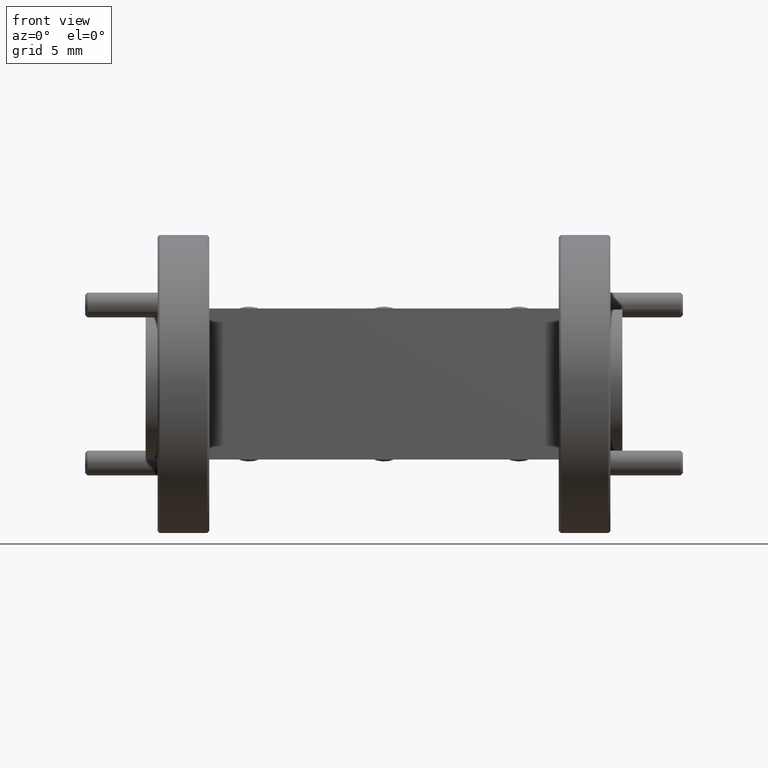
[diagram: clean part render]
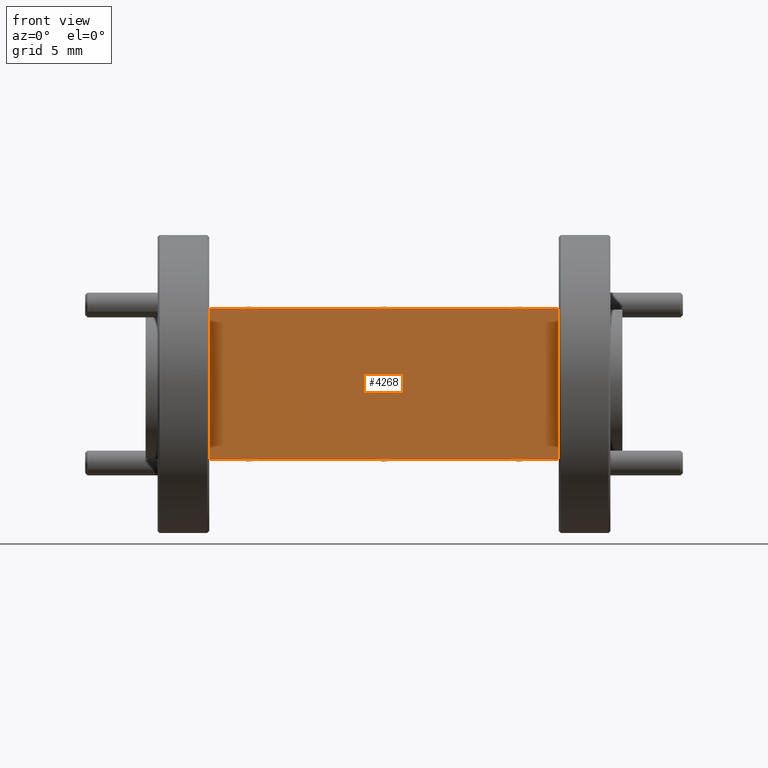
[diagram: same view with one face highlighted and labeled with its STEP entity id]
A machine part, front view. The second image highlights one B-rep face of the part: STEP entity #4268.
In plain terms, the highlighted planar face has unit normal (0, 1, 0).
Its self-contained STEP definition (entity closure, byte-faithful):
#162 = DIRECTION ( 'NONE',  ( -1.138269997360101000E-016, -0.0000000000000000000, 1.000000000000000000 ) ) ;
#322 = PLANE ( 'NONE',  #10404 ) ;
#1583 = VECTOR ( 'NONE', #1643, 39.37007874015748100 ) ;
#1643 = DIRECTION ( 'NONE',  ( 1.000000000000000000, 0.0000000000000000000, 0.0000000000000000000 ) ) ;
#1741 = EDGE_CURVE ( 'NONE', #10791, #9454, #10641, .T. ) ;
#1806 = LINE ( 'NONE', #5659, #2480 ) ;
#2258 = EDGE_CURVE ( 'NONE', #8614, #10791, #6744, .T. ) ;
#2388 = VECTOR ( 'NONE', #162, 39.37007874015748100 ) ;
#2432 = DIRECTION ( 'NONE',  ( -1.138269997360101000E-016, -0.0000000000000000000, 1.000000000000000000 ) ) ;
#2480 = VECTOR ( 'NONE', #8283, 39.37007874015748100 ) ;
#2624 = ORIENTED_EDGE ( 'NONE', *, *, #3609, .F. ) ;
#3042 = DIRECTION ( 'NONE',  ( 0.0000000000000000000, 0.0000000000000000000, 1.000000000000000000 ) ) ;
#3609 = EDGE_CURVE ( 'NONE', #9111, #8614, #1806, .T. ) ;
#4206 = EDGE_CURVE ( 'NONE', #9111, #9454, #6296, .T. ) ;
#4268 = ADVANCED_FACE ( 'NONE', ( #4755 ), #322, .F. ) ;
#4366 = CARTESIAN_POINT ( 'NONE',  ( 0.4400000000000001100, -0.1950000000000012300, 0.1900000000000012000 ) ) ;
#4386 = CARTESIAN_POINT ( 'NONE',  ( 0.4400000000000001100, -0.1950000000000012300, -0.1900000000000012200 ) ) ;
#4641 = VECTOR ( 'NONE', #2432, 39.37007874015748100 ) ;
#4755 = FACE_OUTER_BOUND ( 'NONE', #8994, .T. ) ;
#4938 = CARTESIAN_POINT ( 'NONE',  ( -0.4400000000000002200, -0.1950000000000012300, 0.1900000000000012200 ) ) ;
#5488 = CARTESIAN_POINT ( 'NONE',  ( 0.4400000000000001100, -0.1950000000000012300, -0.3750000000000025000 ) ) ;
#5659 = CARTESIAN_POINT ( 'NONE',  ( 0.4400000000000000000, -0.1950000000000012300, -0.1900000000000012200 ) ) ;
#6296 = LINE ( 'NONE', #5488, #2388 ) ;
#6583 = DIRECTION ( 'NONE',  ( 0.0000000000000000000, 1.000000000000000000, 0.0000000000000000000 ) ) ;
#6744 = LINE ( 'NONE', #11264, #4641 ) ;
#7282 = CARTESIAN_POINT ( 'NONE',  ( 0.4400000000000000000, -0.1950000000000012300, 0.1900000000000012200 ) ) ;
#7772 = CARTESIAN_POINT ( 'NONE',  ( -0.4400000000000001700, -0.1950000000000012300, -0.1900000000000012500 ) ) ;
#8283 = DIRECTION ( 'NONE',  ( -1.000000000000000000, 0.0000000000000000000, -3.880465900091304000E-017 ) ) ;
#8311 = CARTESIAN_POINT ( 'NONE',  ( -0.4400000000000001700, -0.1950000000000012300, -0.3750000000000026100 ) ) ;
#8614 = VERTEX_POINT ( 'NONE', #7772 ) ;
#8994 = EDGE_LOOP ( 'NONE', ( #10814, #2624, #10787, #10119 ) ) ;
#9111 = VERTEX_POINT ( 'NONE', #4386 ) ;
#9454 = VERTEX_POINT ( 'NONE', #7282 ) ;
#10119 = ORIENTED_EDGE ( 'NONE', *, *, #1741, .F. ) ;
#10404 = AXIS2_PLACEMENT_3D ( 'NONE', #8311, #6583, #3042 ) ;
#10641 = LINE ( 'NONE', #4366, #1583 ) ;
#10787 = ORIENTED_EDGE ( 'NONE', *, *, #4206, .T. ) ;
#10791 = VERTEX_POINT ( 'NONE', #4938 ) ;
#10814 = ORIENTED_EDGE ( 'NONE', *, *, #2258, .F. ) ;
#11264 = CARTESIAN_POINT ( 'NONE',  ( -0.4400000000000001700, -0.1950000000000012300, -0.3750000000000026100 ) ) ;